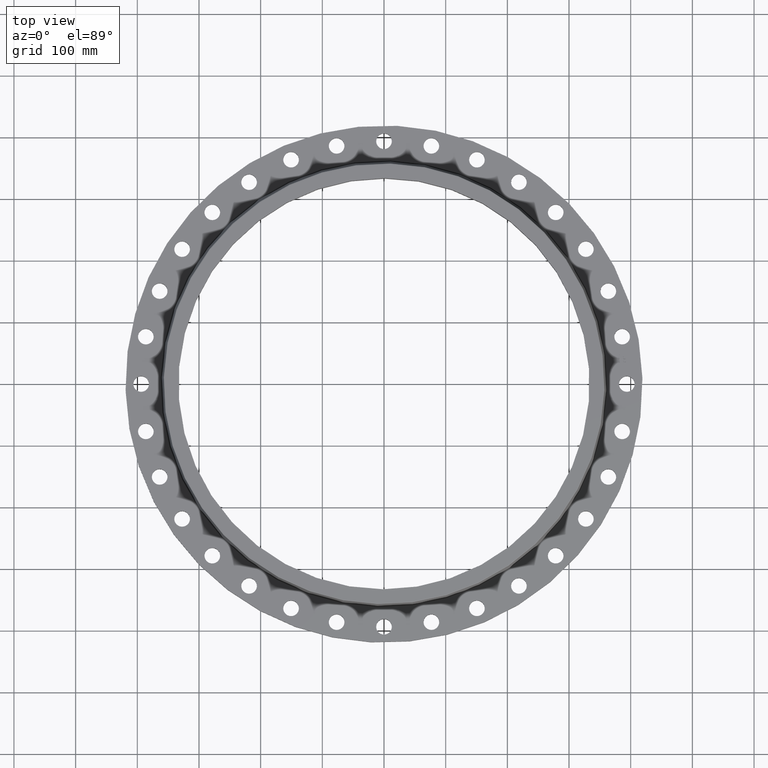
[diagram: clean part render]
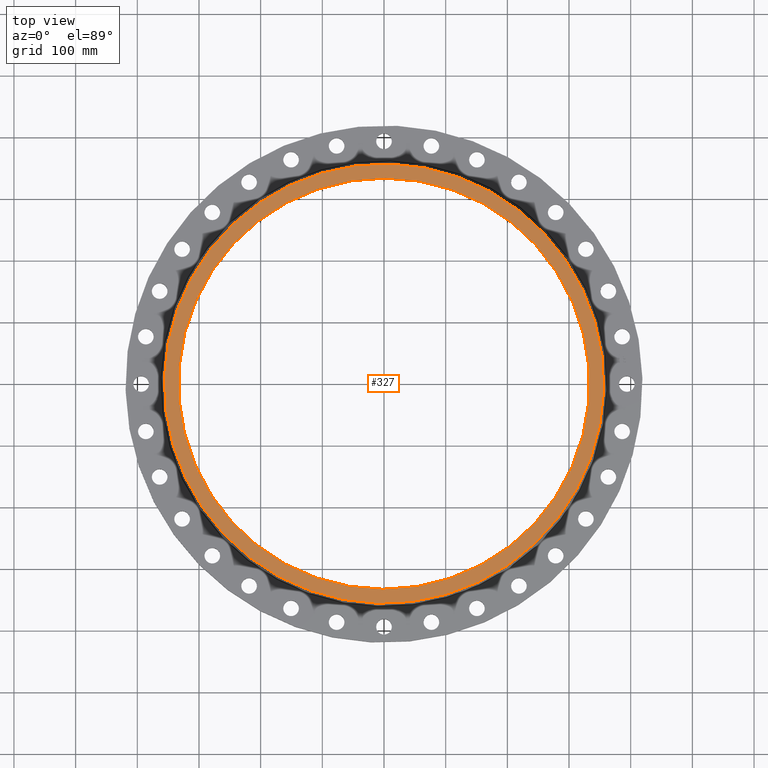
[diagram: same view with one face highlighted and labeled with its STEP entity id]
A machine part, top view. The second image highlights one B-rep face of the part: STEP entity #327.
In plain terms, the highlighted planar face has unit normal (0, 0, -1).
Its self-contained STEP definition (entity closure, byte-faithful):
#271=AXIS2_PLACEMENT_3D('Circle Axis2P3D',#269,#270,$) ;
#290=AXIS2_PLACEMENT_3D('Circle Axis2P3D',#288,#289,$) ;
#303=AXIS2_PLACEMENT_3D('Plane Axis2P3D',#300,#301,#302) ;
#311=AXIS2_PLACEMENT_3D('Circle Axis2P3D',#309,#310,$) ;
#320=AXIS2_PLACEMENT_3D('Circle Axis2P3D',#318,#319,$) ;
#266=CARTESIAN_POINT('Vertex',(6.72314111988,12.3066272713,2.25000000001)) ;
#269=CARTESIAN_POINT('Axis2P3D Location',(0.,0.,2.25000000001)) ;
#273=CARTESIAN_POINT('Vertex',(-6.72314111988,-12.3066272713,2.25000000001)) ;
#288=CARTESIAN_POINT('Axis2P3D Location',(0.,0.,2.25000000001)) ;
#300=CARTESIAN_POINT('Axis2P3D Location',(0.,14.0233270415,2.25000000001)) ;
#309=CARTESIAN_POINT('Axis2P3D Location',(0.,0.,2.25000000001)) ;
#313=CARTESIAN_POINT('Vertex',(-6.29246019421,-11.5182711249,2.25000000001)) ;
#315=CARTESIAN_POINT('Vertex',(6.29246019421,11.5182711249,2.25000000001)) ;
#318=CARTESIAN_POINT('Axis2P3D Location',(0.,0.,2.25000000001)) ;
#270=DIRECTION('Axis2P3D Direction',(0.,0.,-0.0393700787402)) ;
#289=DIRECTION('Axis2P3D Direction',(0.,0.,-0.0393700787402)) ;
#301=DIRECTION('Axis2P3D Direction',(0.,0.,-0.0393700787402)) ;
#302=DIRECTION('Axis2P3D XDirection',(0.0393700787402,0.,0.)) ;
#310=DIRECTION('Axis2P3D Direction',(0.,0.,-0.0393700787402)) ;
#319=DIRECTION('Axis2P3D Direction',(0.,0.,-0.0393700787402)) ;
#306=ORIENTED_EDGE('',*,*,#275,.F.) ;
#307=ORIENTED_EDGE('',*,*,#292,.F.) ;
#324=ORIENTED_EDGE('',*,*,#317,.T.) ;
#325=ORIENTED_EDGE('',*,*,#322,.T.) ;
#326=FACE_BOUND('',#323,.T.) ;
#327=ADVANCED_FACE('PartBody',(#308,#326),#304,.F.) ;
#272=CIRCLE('generated circle',#271,14.0233270415) ;
#291=CIRCLE('generated circle',#290,14.0233270415) ;
#312=CIRCLE('generated circle',#311,13.1250000001) ;
#321=CIRCLE('generated circle',#320,13.1250000001) ;
#275=EDGE_CURVE('',#267,#274,#272,.T.) ;
#292=EDGE_CURVE('',#274,#267,#291,.T.) ;
#317=EDGE_CURVE('',#314,#316,#312,.T.) ;
#322=EDGE_CURVE('',#316,#314,#321,.T.) ;
#305=EDGE_LOOP('',(#306,#307)) ;
#323=EDGE_LOOP('',(#324,#325)) ;
#308=FACE_OUTER_BOUND('',#305,.T.) ;
#304=PLANE('',#303) ;
#267=VERTEX_POINT('',#266) ;
#274=VERTEX_POINT('',#273) ;
#314=VERTEX_POINT('',#313) ;
#316=VERTEX_POINT('',#315) ;